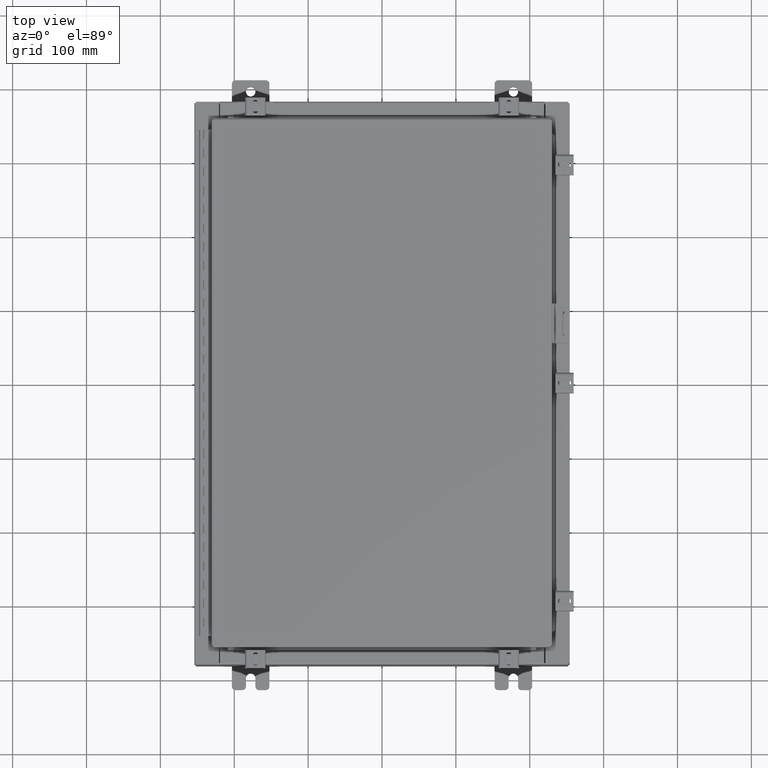
[diagram: clean part render]
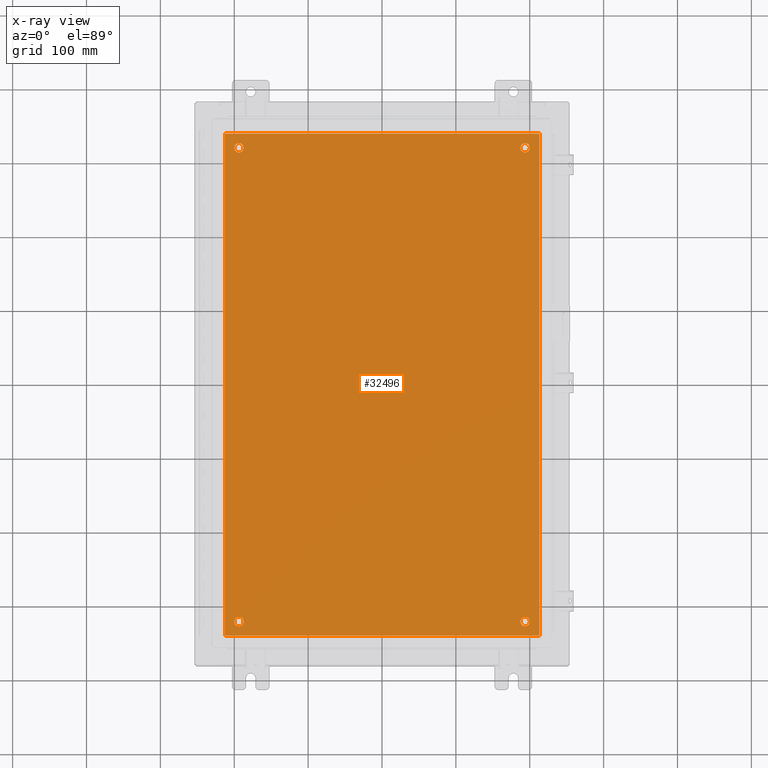
[diagram: x-ray — body ghosted, one internal face saturated and labeled with its STEP entity id]
A machine part, top view, then the same camera in x-ray: the body is ghosted and one INTERNAL B-rep face — a face not visible from any outside direction — is saturated and labeled: STEP entity #32496.
In plain terms, the highlighted planar face has unit normal (0, 0, -1).
Its self-contained STEP definition (entity closure, byte-faithful):
#1220 = AXIS2_PLACEMENT_3D ( 'NONE', #16457, #10024, #3605 ) ;
#1232 = DIRECTION ( 'NONE',  ( -1.000000000000000000, 0.0000000000000000000, 0.0000000000000000000 ) ) ;
#1399 = CIRCLE ( 'NONE', #27634, 0.2499999999999998100 ) ;
#1544 = VECTOR ( 'NONE', #24780, 39.37007874015748100 ) ;
#2056 = EDGE_LOOP ( 'NONE', ( #22290, #26220, #32262, #4200 ) ) ;
#2680 = VERTEX_POINT ( 'NONE', #22490 ) ;
#2980 = CARTESIAN_POINT ( 'NONE',  ( 7.375000000000004400, -12.62500000000000200, -0.1039999999999999800 ) ) ;
#3048 = DIRECTION ( 'NONE',  ( 0.0000000000000000000, 1.000000000000000000, 0.0000000000000000000 ) ) ;
#3212 = PLANE ( 'NONE',  #28396 ) ;
#3349 = CARTESIAN_POINT ( 'NONE',  ( 0.0000000000000000000, 0.0000000000000000000, -0.1039999999999999800 ) ) ;
#3605 = DIRECTION ( 'NONE',  ( -1.000000000000000000, 0.0000000000000000000, 0.0000000000000000000 ) ) ;
#4054 = CARTESIAN_POINT ( 'NONE',  ( -7.625000000000002700, -12.62500000000000200, -0.1039999999999999800 ) ) ;
#4200 = ORIENTED_EDGE ( 'NONE', *, *, #29613, .F. ) ;
#4603 = VERTEX_POINT ( 'NONE', #21927 ) ;
#4719 = EDGE_CURVE ( 'NONE', #20761, #7976, #31298, .T. ) ;
#4919 = EDGE_CURVE ( 'NONE', #32651, #17618, #30108, .T. ) ;
#5078 = AXIS2_PLACEMENT_3D ( 'NONE', #6922, #27376, #9856 ) ;
#5139 = CARTESIAN_POINT ( 'NONE',  ( 8.500000000000001800, 13.38300000000000300, -0.1040000000000009100 ) ) ;
#5387 = AXIS2_PLACEMENT_3D ( 'NONE', #22770, #17215, #20559 ) ;
#5847 = EDGE_CURVE ( 'NONE', #18792, #17031, #36609, .T. ) ;
#6265 = DIRECTION ( 'NONE',  ( -0.0000000000000000000, -0.0000000000000000000, 1.000000000000000000 ) ) ;
#6406 = CARTESIAN_POINT ( 'NONE',  ( -7.375000000000003600, -12.62500000000000200, -0.1039999999999999800 ) ) ;
#6922 = CARTESIAN_POINT ( 'NONE',  ( -7.625000000000002700, 12.62500000000000200, -0.1039999999999999800 ) ) ;
#7059 = AXIS2_PLACEMENT_3D ( 'NONE', #36332, #18797, #1232 ) ;
#7214 = DIRECTION ( 'NONE',  ( -1.000000000000000000, 0.0000000000000000000, 0.0000000000000000000 ) ) ;
#7976 = VERTEX_POINT ( 'NONE', #27805 ) ;
#7998 = CIRCLE ( 'NONE', #5387, 0.2499999999999987000 ) ;
#9341 = LINE ( 'NONE', #15904, #1544 ) ;
#9374 = CARTESIAN_POINT ( 'NONE',  ( -7.375000000000003600, 12.62500000000000200, -0.1039999999999999800 ) ) ;
#9804 = LINE ( 'NONE', #36717, #10293 ) ;
#9856 = DIRECTION ( 'NONE',  ( -1.000000000000000000, 0.0000000000000000000, 0.0000000000000000000 ) ) ;
#9889 = AXIS2_PLACEMENT_3D ( 'NONE', #14589, #37971, #17533 ) ;
#10024 = DIRECTION ( 'NONE',  ( -0.0000000000000000000, -0.0000000000000000000, 1.000000000000000000 ) ) ;
#10227 = VERTEX_POINT ( 'NONE', #14984 ) ;
#10293 = VECTOR ( 'NONE', #3048, 39.37007874015748100 ) ;
#10810 = CARTESIAN_POINT ( 'NONE',  ( -8.500000000000000000, -13.38299999999999400, -0.1040000000000009100 ) ) ;
#11032 = DIRECTION ( 'NONE',  ( -1.000000000000000000, -0.0000000000000000000, -0.0000000000000000000 ) ) ;
#11454 = FACE_BOUND ( 'NONE', #15843, .T. ) ;
#12146 = EDGE_LOOP ( 'NONE', ( #33630, #23869 ) ) ;
#12347 = CARTESIAN_POINT ( 'NONE',  ( -7.875000000000002700, 12.62500000000000200, -0.1039999999999999800 ) ) ;
#12449 = DIRECTION ( 'NONE',  ( -1.000000000000000000, 0.0000000000000000000, 0.0000000000000000000 ) ) ;
#12481 = DIRECTION ( 'NONE',  ( -0.0000000000000000000, -0.0000000000000000000, 1.000000000000000000 ) ) ;
#13567 = CIRCLE ( 'NONE', #7059, 0.2499999999999987000 ) ;
#13931 = ORIENTED_EDGE ( 'NONE', *, *, #33393, .T. ) ;
#14589 = CARTESIAN_POINT ( 'NONE',  ( -7.625000000000002700, -12.62500000000000200, -0.1039999999999999800 ) ) ;
#14984 = CARTESIAN_POINT ( 'NONE',  ( 7.875000000000001800, -12.62500000000000200, -0.1039999999999999800 ) ) ;
#15217 = VECTOR ( 'NONE', #31967, 39.37007874015748100 ) ;
#15238 = EDGE_LOOP ( 'NONE', ( #21533, #25616 ) ) ;
#15843 = EDGE_LOOP ( 'NONE', ( #19495, #17418 ) ) ;
#15904 = CARTESIAN_POINT ( 'NONE',  ( -8.383000000000000900, 13.38300000000000100, -0.1039999999999998300 ) ) ;
#16457 = CARTESIAN_POINT ( 'NONE',  ( 7.625000000000002700, 12.62500000000000200, -0.1039999999999999800 ) ) ;
#17031 = VERTEX_POINT ( 'NONE', #23275 ) ;
#17215 = DIRECTION ( 'NONE',  ( -0.0000000000000000000, -0.0000000000000000000, 1.000000000000000000 ) ) ;
#17418 = ORIENTED_EDGE ( 'NONE', *, *, #24586, .T. ) ;
#17533 = DIRECTION ( 'NONE',  ( -1.000000000000000000, 0.0000000000000000000, 0.0000000000000000000 ) ) ;
#17618 = VERTEX_POINT ( 'NONE', #12347 ) ;
#17704 = VECTOR ( 'NONE', #11032, 39.37007874015748100 ) ;
#18344 = FACE_OUTER_BOUND ( 'NONE', #2056, .T. ) ;
#18792 = VERTEX_POINT ( 'NONE', #32181 ) ;
#18797 = DIRECTION ( 'NONE',  ( -0.0000000000000000000, -0.0000000000000000000, 1.000000000000000000 ) ) ;
#18935 = EDGE_CURVE ( 'NONE', #7976, #20761, #1399, .T. ) ;
#19251 = FACE_BOUND ( 'NONE', #12146, .T. ) ;
#19312 = DIRECTION ( 'NONE',  ( -0.0000000000000000000, -0.0000000000000000000, 1.000000000000000000 ) ) ;
#19495 = ORIENTED_EDGE ( 'NONE', *, *, #5847, .T. ) ;
#20344 = CARTESIAN_POINT ( 'NONE',  ( 8.383000000000002700, 13.38300000000000100, -0.1039999999999992700 ) ) ;
#20559 = DIRECTION ( 'NONE',  ( -1.000000000000000000, 0.0000000000000000000, 0.0000000000000000000 ) ) ;
#20761 = VERTEX_POINT ( 'NONE', #6406 ) ;
#21533 = ORIENTED_EDGE ( 'NONE', *, *, #36304, .T. ) ;
#21927 = CARTESIAN_POINT ( 'NONE',  ( -8.383000000000000900, -13.38299999999999400, -0.1040000000000009100 ) ) ;
#22290 = ORIENTED_EDGE ( 'NONE', *, *, #22303, .F. ) ;
#22303 = EDGE_CURVE ( 'NONE', #4603, #23690, #36998, .T. ) ;
#22490 = CARTESIAN_POINT ( 'NONE',  ( -8.383000000000000900, 13.38300000000000100, -0.1039999999999998300 ) ) ;
#22770 = CARTESIAN_POINT ( 'NONE',  ( 7.625000000000002700, 12.62500000000000200, -0.1039999999999999800 ) ) ;
#23185 = VERTEX_POINT ( 'NONE', #20344 ) ;
#23275 = CARTESIAN_POINT ( 'NONE',  ( 7.375000000000004400, 12.62500000000000200, -0.1039999999999999800 ) ) ;
#23690 = VERTEX_POINT ( 'NONE', #27786 ) ;
#23759 = CARTESIAN_POINT ( 'NONE',  ( 7.625000000000002700, -12.62500000000000200, -0.1039999999999999800 ) ) ;
#23869 = ORIENTED_EDGE ( 'NONE', *, *, #18935, .T. ) ;
#23892 = AXIS2_PLACEMENT_3D ( 'NONE', #23759, #6265, #26720 ) ;
#24586 = EDGE_CURVE ( 'NONE', #17031, #18792, #7998, .T. ) ;
#24780 = DIRECTION ( 'NONE',  ( 0.0000000000000000000, -1.000000000000000000, 0.0000000000000000000 ) ) ;
#25458 = LINE ( 'NONE', #5139, #17704 ) ;
#25616 = ORIENTED_EDGE ( 'NONE', *, *, #36469, .T. ) ;
#25646 = VERTEX_POINT ( 'NONE', #2980 ) ;
#26105 = FACE_BOUND ( 'NONE', #36447, .T. ) ;
#26220 = ORIENTED_EDGE ( 'NONE', *, *, #30405, .F. ) ;
#26720 = DIRECTION ( 'NONE',  ( -1.000000000000000000, 0.0000000000000000000, 0.0000000000000000000 ) ) ;
#27120 = DIRECTION ( 'NONE',  ( 0.0000000000000000000, 0.0000000000000000000, -1.000000000000000000 ) ) ;
#27376 = DIRECTION ( 'NONE',  ( -0.0000000000000000000, -0.0000000000000000000, 1.000000000000000000 ) ) ;
#27519 = DIRECTION ( 'NONE',  ( -1.000000000000000000, 0.0000000000000000000, -0.0000000000000000000 ) ) ;
#27634 = AXIS2_PLACEMENT_3D ( 'NONE', #4054, #12481, #12449 ) ;
#27749 = CIRCLE ( 'NONE', #23892, 0.2499999999999987000 ) ;
#27786 = CARTESIAN_POINT ( 'NONE',  ( 8.383000000000002700, -13.38299999999999200, -0.1039999999999992700 ) ) ;
#27805 = CARTESIAN_POINT ( 'NONE',  ( -7.875000000000002700, -12.62500000000000200, -0.1039999999999999800 ) ) ;
#28396 = AXIS2_PLACEMENT_3D ( 'NONE', #3349, #27120, #27519 ) ;
#29613 = EDGE_CURVE ( 'NONE', #23690, #23185, #9804, .T. ) ;
#29689 = CIRCLE ( 'NONE', #5078, 0.2499999999999998100 ) ;
#30108 = CIRCLE ( 'NONE', #32166, 0.2499999999999998100 ) ;
#30405 = EDGE_CURVE ( 'NONE', #2680, #4603, #9341, .T. ) ;
#31298 = CIRCLE ( 'NONE', #9889, 0.2499999999999998100 ) ;
#31967 = DIRECTION ( 'NONE',  ( 1.000000000000000000, -0.0000000000000000000, -0.0000000000000000000 ) ) ;
#32166 = AXIS2_PLACEMENT_3D ( 'NONE', #36745, #19312, #7214 ) ;
#32181 = CARTESIAN_POINT ( 'NONE',  ( 7.875000000000001800, 12.62500000000000200, -0.1039999999999999800 ) ) ;
#32262 = ORIENTED_EDGE ( 'NONE', *, *, #36101, .F. ) ;
#32496 = ADVANCED_FACE ( 'NONE', ( #19251, #33910, #11454, #26105, #18344 ), #3212, .T. ) ;
#32651 = VERTEX_POINT ( 'NONE', #9374 ) ;
#33393 = EDGE_CURVE ( 'NONE', #17618, #32651, #29689, .T. ) ;
#33630 = ORIENTED_EDGE ( 'NONE', *, *, #4719, .T. ) ;
#33910 = FACE_BOUND ( 'NONE', #15238, .T. ) ;
#35402 = ORIENTED_EDGE ( 'NONE', *, *, #4919, .T. ) ;
#36101 = EDGE_CURVE ( 'NONE', #23185, #2680, #25458, .T. ) ;
#36304 = EDGE_CURVE ( 'NONE', #10227, #25646, #27749, .T. ) ;
#36332 = CARTESIAN_POINT ( 'NONE',  ( 7.625000000000002700, -12.62500000000000200, -0.1039999999999999800 ) ) ;
#36447 = EDGE_LOOP ( 'NONE', ( #35402, #13931 ) ) ;
#36469 = EDGE_CURVE ( 'NONE', #25646, #10227, #13567, .T. ) ;
#36609 = CIRCLE ( 'NONE', #1220, 0.2499999999999987000 ) ;
#36717 = CARTESIAN_POINT ( 'NONE',  ( 8.383000000000002700, -13.38299999999999200, -0.1039999999999992700 ) ) ;
#36745 = CARTESIAN_POINT ( 'NONE',  ( -7.625000000000002700, 12.62500000000000200, -0.1039999999999999800 ) ) ;
#36998 = LINE ( 'NONE', #10810, #15217 ) ;
#37971 = DIRECTION ( 'NONE',  ( -0.0000000000000000000, -0.0000000000000000000, 1.000000000000000000 ) ) ;